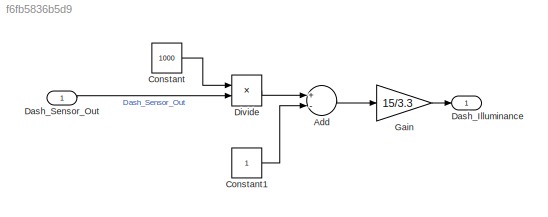
MODEL slx_f6fb5836b5d9
KIND model
CONFIG AbsTol = auto
CONFIG EnableMultiTasking = off
CONFIG FixedStep = 1
CONFIG InitFcn = checkUnitMismatch
CONFIG MaxStep = auto
CONFIG MinStep = auto
CONFIG PreLoadFcn = sl_refresh_customizations\nsimulinkExportUnitCs\nE_Global_Constants\nA_Data_Dictionary\n\n\n\n\n\nenum_Simulink\n\nbus_Simulink\n\n\n\n\n\n\n\n\n
CONFIG RelTol = 1e-3
CONFIG SampleTimeConstraint = Unconstrained
CONFIG Solver = FixedStepDiscrete
CONFIG SolverName = FixedStepDiscrete
CONFIG StartTime = 0.0
CONFIG StopTime = 10.0
WORKSPACE source: MAT-file member
WORKSPACE ESD_URL = 'http://127.0.0.1:63320/node?ref=r%3A92f02917-2939-4625-878a-0cf4bf3cdc0b%28AHCDemo._30_Implementation%29%2F6499409138675363509'
BLOCK [Sum] Add
  InputSameDT = off
  Inputs = +-
  OutDataTypeStr = Inherit: Inherit via internal rule
  Ports = [2, 1]
  SaturateOnIntegerOverflow = off
BLOCK [Constant] Constant
  Value = 1000
BLOCK [Constant] Constant1
BLOCK [Outport] Dash_Illuminance
  AttributesFormatString = (lx)
  IconDisplay = Port number
  OutDataTypeStr = double
  Unit = lx
  UserDataPersistent = on
BLOCK [Inport] Dash_Sensor_Out
  AttributesFormatString = (V)
  IconDisplay = Port number
  OutDataTypeStr = double
  Unit = V
  UserDataPersistent = on
BLOCK [Product] Divide
  InputSameDT = off
  Inputs = */
  OutDataTypeStr = Inherit: Inherit via internal rule
  Ports = [2, 1]
  RndMeth = Floor
  SaturateOnIntegerOverflow = off
BLOCK [Gain] Gain
  Gain = 15/3.3
  OutDataTypeStr = Inherit: Inherit via internal rule
  ParamDataTypeStr = Inherit: Inherit via internal rule
  SaturateOnIntegerOverflow = off
LINE Add:1 -> Gain:1
LINE Constant1:1 -> Add:2
LINE Constant:1 -> Divide:1
LINE Dash_Sensor_Out:1 -> Divide:2
LINE Divide:1 -> Add:1
LINE Gain:1 -> Dash_Illuminance:1
